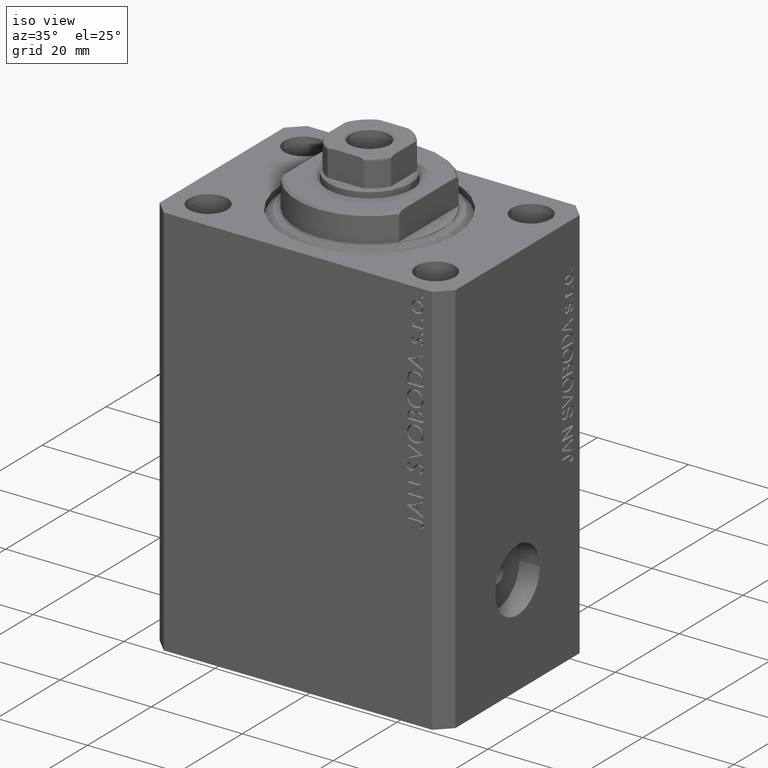
[diagram: clean part render]
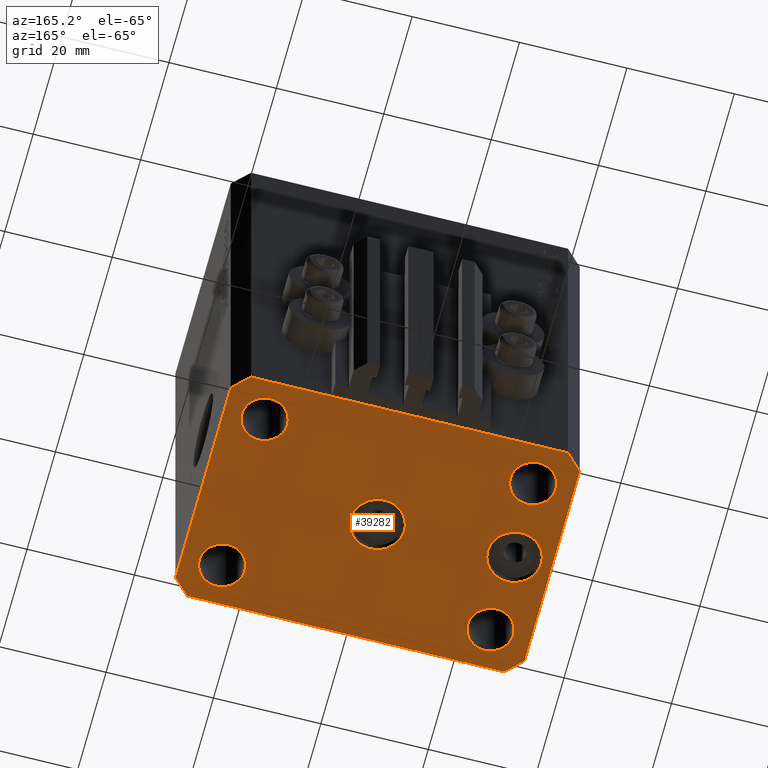
[diagram: tour spotlight — one face highlighted and labeled with its STEP entity id]
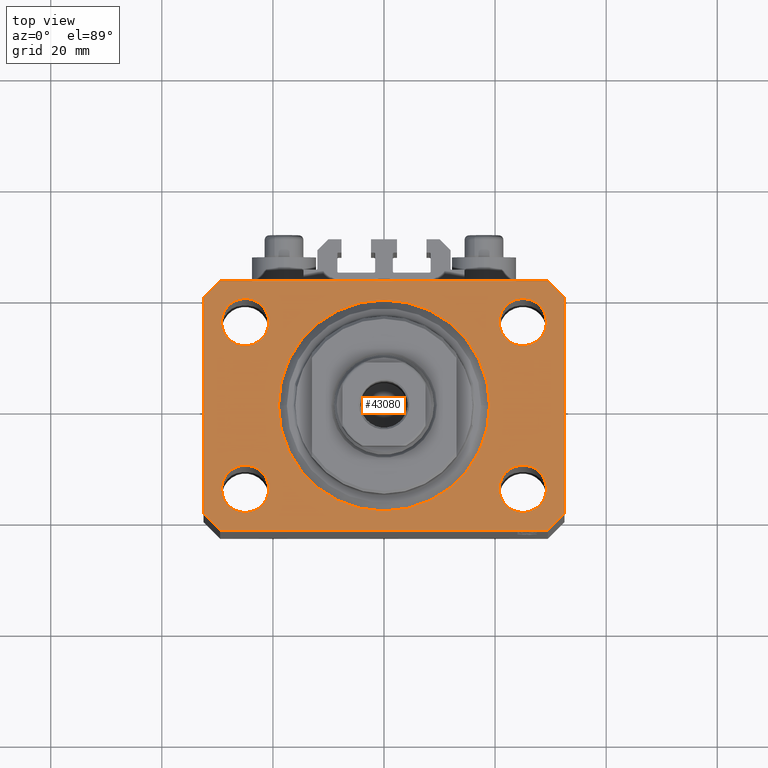
[diagram: tour spotlight — one face highlighted and labeled with its STEP entity id]
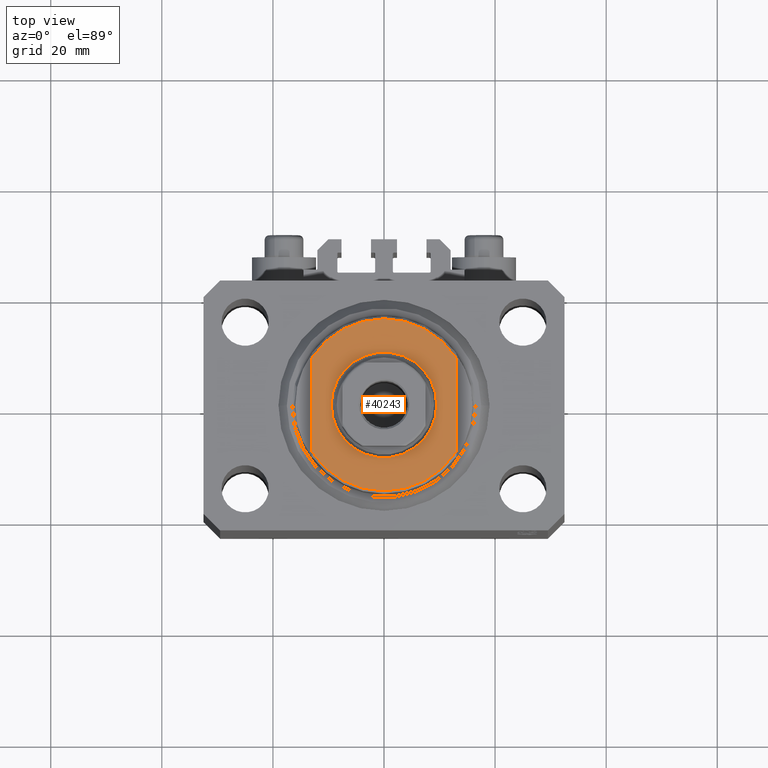
[diagram: tour spotlight — one face highlighted and labeled with its STEP entity id]
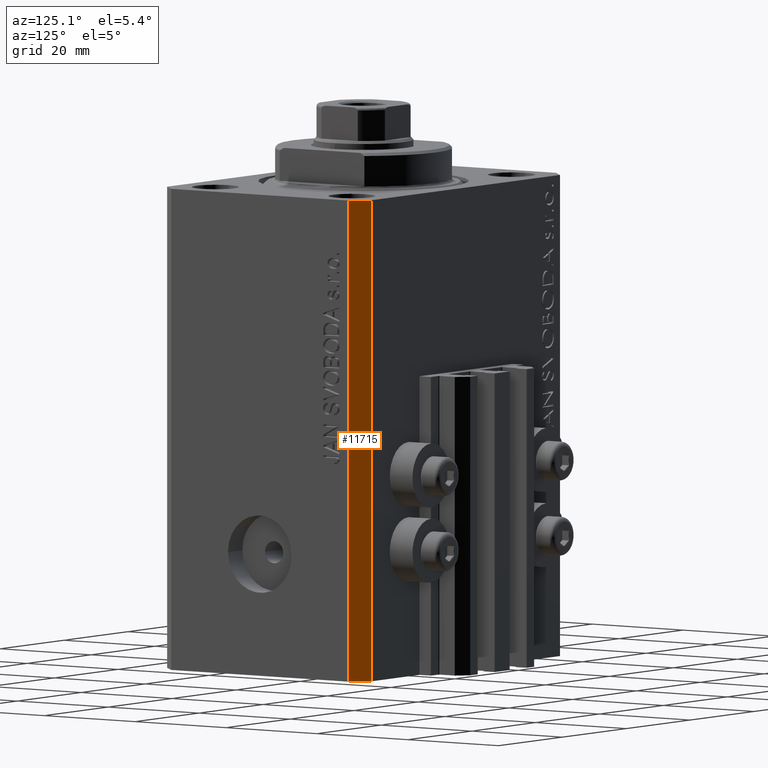
[diagram: tour spotlight — one face highlighted and labeled with its STEP entity id]
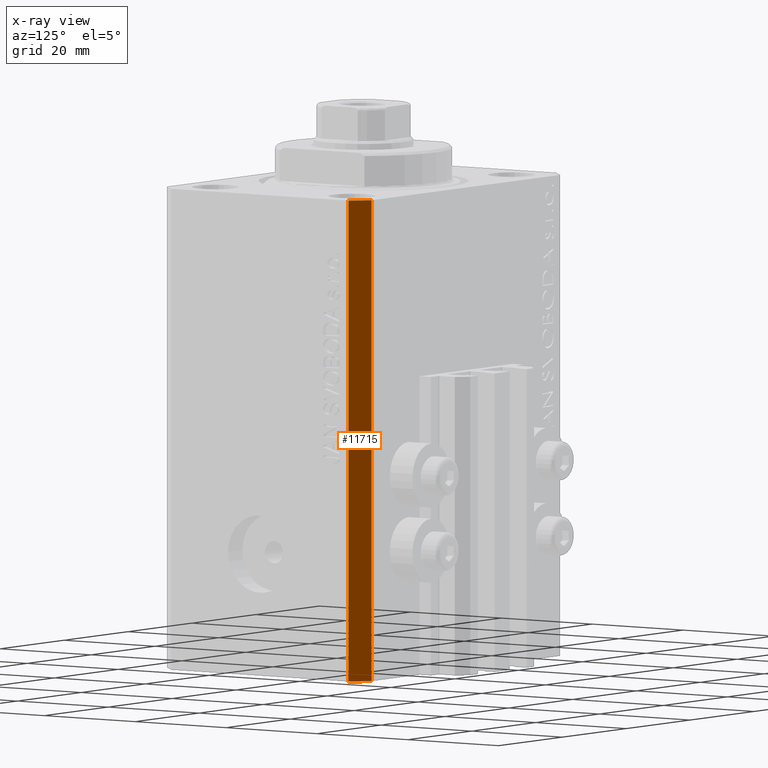
[diagram: x-ray of the same camera — body ghosted, this tour face saturated]
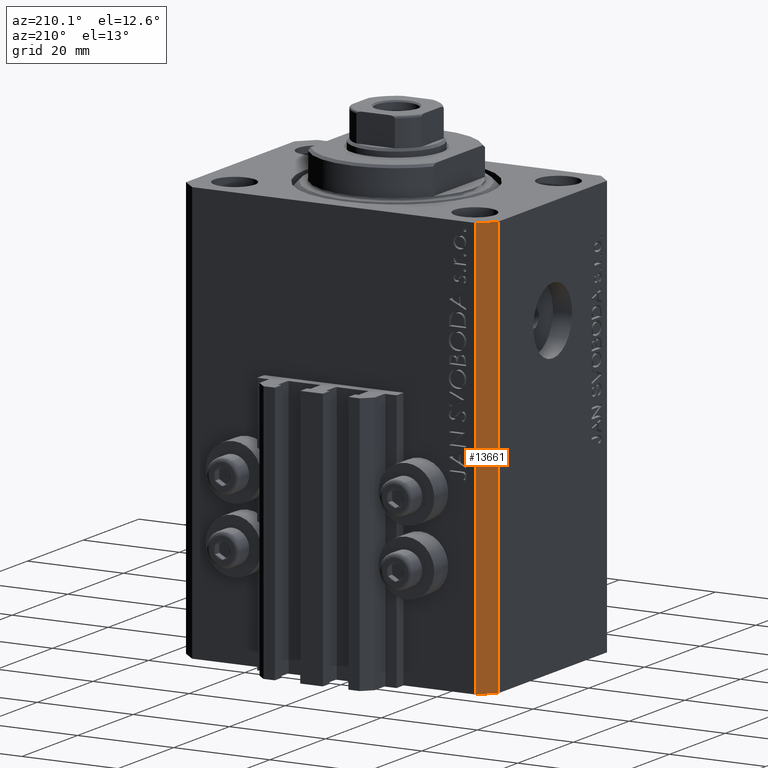
[diagram: tour spotlight — one face highlighted and labeled with its STEP entity id]
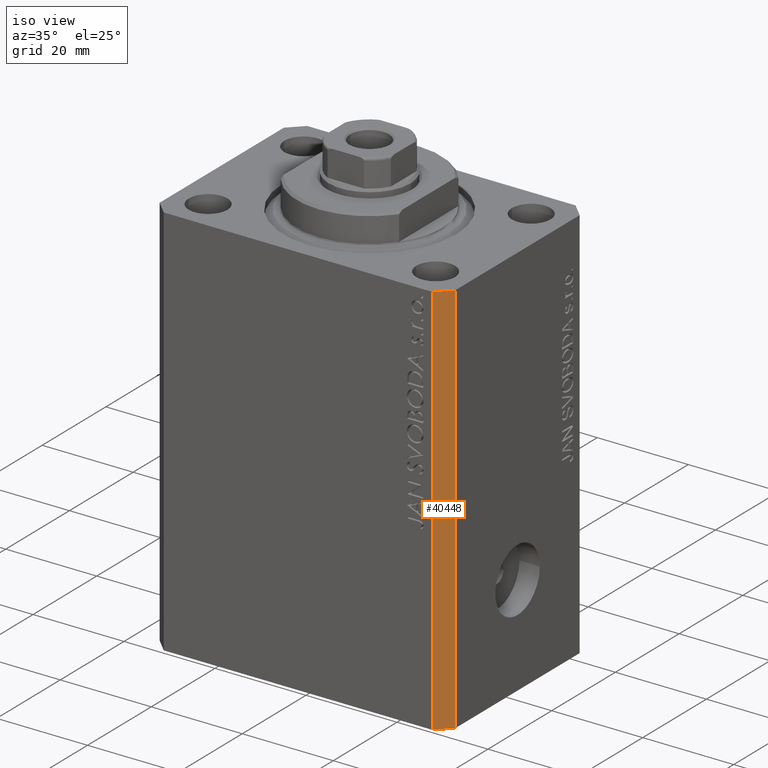
[diagram: tour spotlight — one face highlighted and labeled with its STEP entity id]
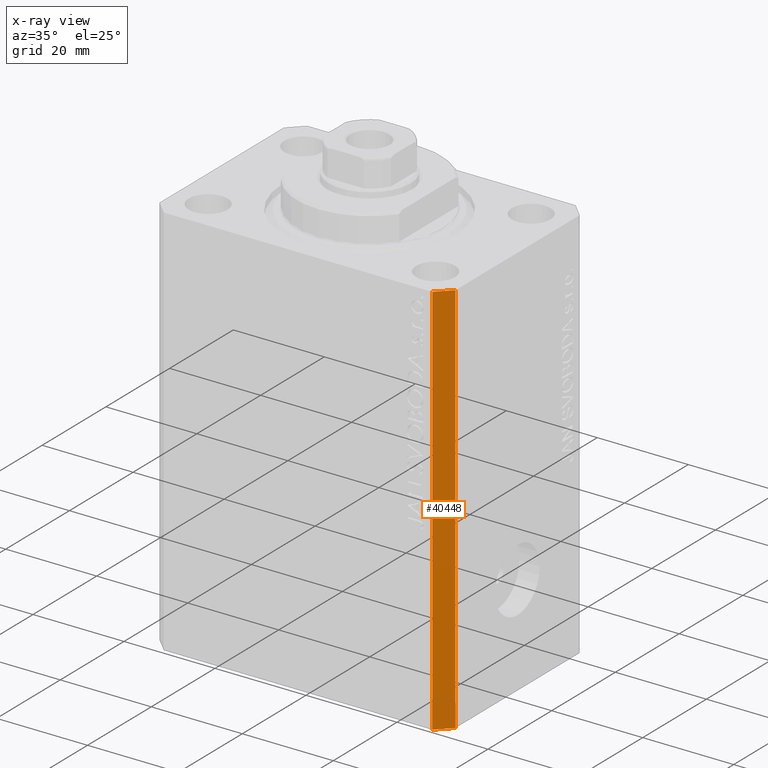
[diagram: x-ray of the same camera — body ghosted, this tour face saturated]
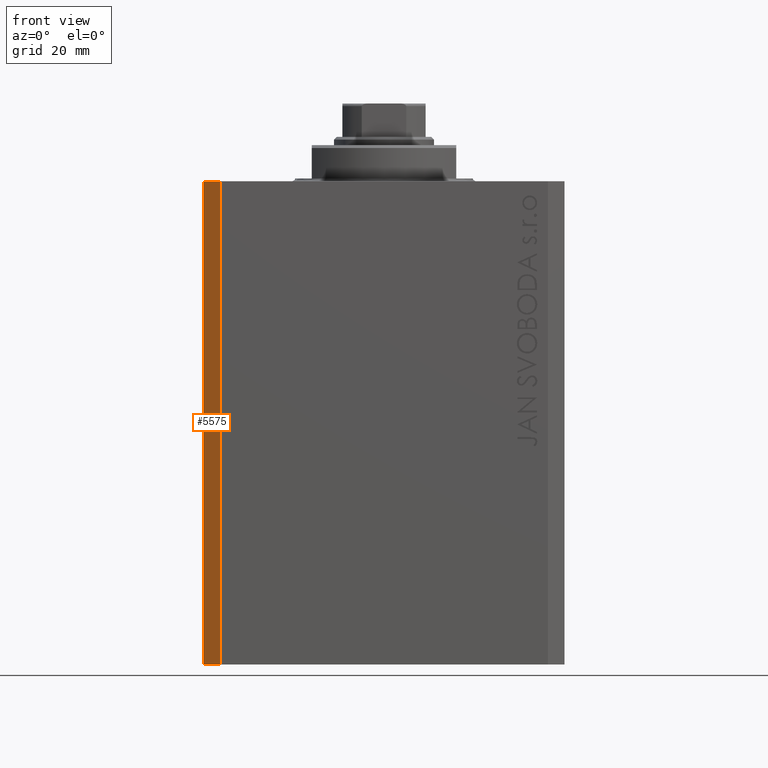
[diagram: tour spotlight — one face highlighted and labeled with its STEP entity id]
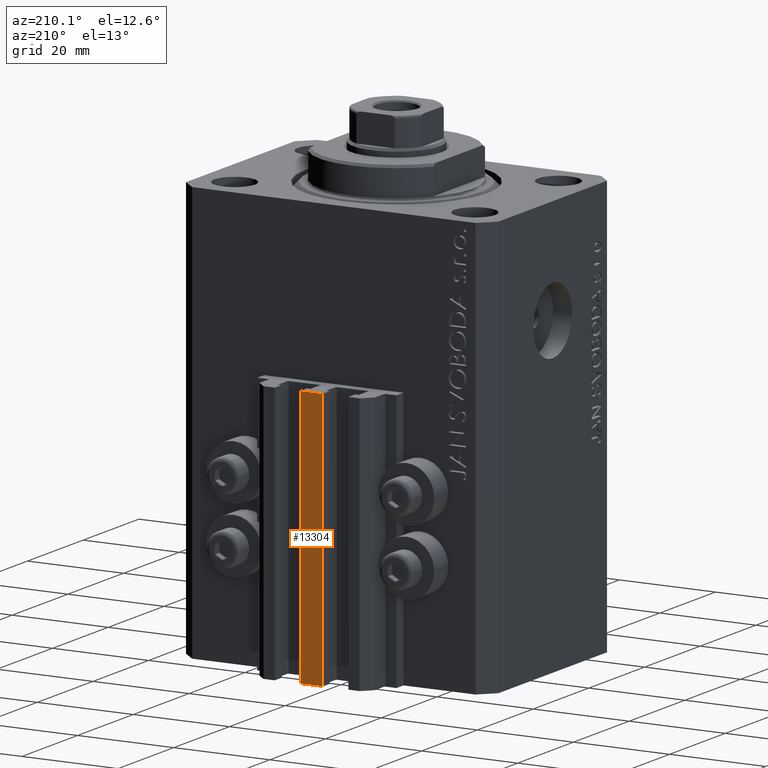
[diagram: tour spotlight — one face highlighted and labeled with its STEP entity id]
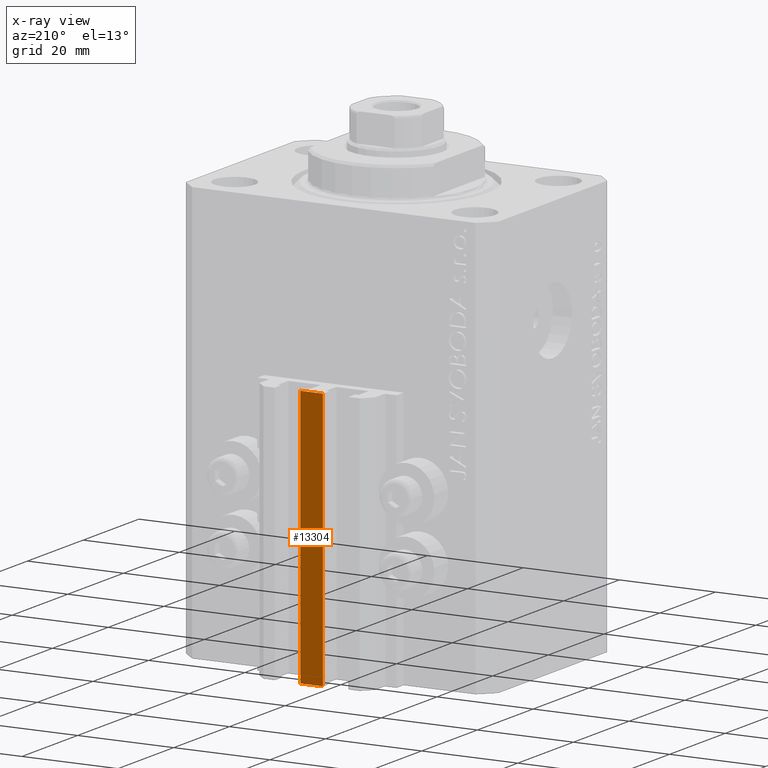
[diagram: x-ray of the same camera — body ghosted, this tour face saturated]
A machine part: a face-by-face anatomy tour. The part has 1042 B-rep faces; the first image is the clean iso view, then the 8 largest visible faces are spotlighted one at a time (largest first), each with its STEP entity span.

Face 1 — auxiliary view, entity #39282. In plain terms, the highlighted planar face has unit normal (0, 0, 1).
Definition (entity closure, byte-faithful):
#115 = LINE ( 'NONE', #44244, #20739 ) ;
#212 = AXIS2_PLACEMENT_3D ( 'NONE', #8653, #4113, #30026 ) ;
#399 = LINE ( 'NONE', #7819, #4904 ) ;
#477 = DIRECTION ( 'NONE',  ( 1.000000000000000000, 0.000000000000000000, -0.000000000000000000 ) ) ;
#521 = DIRECTION ( 'NONE',  ( -0.000000000000000000, -0.000000000000000000, -1.000000000000000000 ) ) ;
#937 = CARTESIAN_POINT ( 'NONE',  ( -20.74999999997862687, 14.99999999999999645, -87.00000000000000000 ) ) ;
#983 = DIRECTION ( 'NONE',  ( 0.7071067811865483499, 0.7071067811865466846, 0.000000000000000000 ) ) ;
#1861 = LINE ( 'NONE', #30178, #19698 ) ;
#1927 = CIRCLE ( 'NONE', #7280, 4.249999999976314058 ) ;
#2139 = VERTEX_POINT ( 'NONE', #16268 ) ;
#2210 = DIRECTION ( 'NONE',  ( -0.000000000000000000, -0.000000000000000000, -1.000000000000000000 ) ) ;
#2329 = EDGE_LOOP ( 'NONE', ( #7357, #16683 ) ) ;
#2409 = VERTEX_POINT ( 'NONE', #18868 ) ;
#2508 = VERTEX_POINT ( 'NONE', #13100 ) ;
#2662 = EDGE_CURVE ( 'NONE', #2409, #18766, #39678, .T. ) ;
#4113 = DIRECTION ( 'NONE',  ( 0.000000000000000000, 0.000000000000000000, -1.000000000000000000 ) ) ;
#4574 = CARTESIAN_POINT ( 'NONE',  ( 29.49999999999650413, -22.49999999999949196, -87.00000000000000000 ) ) ;
#4904 = VECTOR ( 'NONE', #11202, 1000.000000000000114 ) ;
#4948 = ORIENTED_EDGE ( 'NONE', *, *, #17519, .F. ) ;
#5752 = DIRECTION ( 'NONE',  ( -0.7071067811865344721, 0.7071067811865606734, 0.000000000000000000 ) ) ;
#6012 = ORIENTED_EDGE ( 'NONE', *, *, #2662, .F. ) ;
#6113 = DIRECTION ( 'NONE',  ( -1.000000000000000000, 0.000000000000000000, 0.000000000000000000 ) ) ;
#6279 = DIRECTION ( 'NONE',  ( 1.000000000000000000, 0.000000000000000000, 0.000000000000000000 ) ) ;
#6492 = DIRECTION ( 'NONE',  ( -1.000000000000000000, 0.000000000000000000, 0.000000000000000000 ) ) ;
#6747 = DIRECTION ( 'NONE',  ( -0.000000000000000000, -0.000000000000000000, -1.000000000000000000 ) ) ;
#7280 = AXIS2_PLACEMENT_3D ( 'NONE', #46734, #46969, #7368 ) ;
#7357 = ORIENTED_EDGE ( 'NONE', *, *, #10521, .F. ) ;
#7368 = DIRECTION ( 'NONE',  ( 1.000000000000000000, 0.000000000000000000, 0.000000000000000000 ) ) ;
#7600 = VECTOR ( 'NONE', #5752, 1000.000000000000000 ) ;
#7702 = EDGE_LOOP ( 'NONE', ( #34457, #42528 ) ) ;
#7819 = CARTESIAN_POINT ( 'NONE',  ( -32.49999999999650413, -19.49999999999949907, -87.00000000000000000 ) ) ;
#7864 = EDGE_CURVE ( 'NONE', #20092, #42844, #1927, .T. ) ;
#8006 = VERTEX_POINT ( 'NONE', #26803 ) ;
#8611 = CARTESIAN_POINT ( 'NONE',  ( 0.000000000000000000, 0.000000000000000000, -87.00000000000000000 ) ) ;
#8653 = CARTESIAN_POINT ( 'NONE',  ( -25.50000000000000000, 0.000000000000000000, -87.00000000000000000 ) ) ;
#8844 = CARTESIAN_POINT ( 'NONE',  ( -24.99999999999999289, -15.00000000000000355, -87.00000000000000000 ) ) ;
#8918 = DIRECTION ( 'NONE',  ( -0.7071067811865474617, -0.7071067811865474617, 0.000000000000000000 ) ) ;
#9793 = ORIENTED_EDGE ( 'NONE', *, *, #38619, .F. ) ;
#9897 = CARTESIAN_POINT ( 'NONE',  ( 20.75000000002367884, -15.00000000000000355, -87.00000000000000000 ) ) ;
#9981 = EDGE_LOOP ( 'NONE', ( #42100, #41943 ) ) ;
#10369 = CARTESIAN_POINT ( 'NONE',  ( 29.49999999999650413, -22.49999999999949196, -87.00000000000000000 ) ) ;
#10419 = DIRECTION ( 'NONE',  ( 0.000000000000000000, 0.000000000000000000, -1.000000000000000000 ) ) ;
#10521 = EDGE_CURVE ( 'NONE', #14673, #21782, #37959, .T. ) ;
#11202 = DIRECTION ( 'NONE',  ( 0.7071067811865474617, -0.7071067811865474617, 0.000000000000000000 ) ) ;
#11326 = DIRECTION ( 'NONE',  ( 1.000000000000000000, 0.000000000000000000, 0.000000000000000000 ) ) ;
#11360 = CARTESIAN_POINT ( 'NONE',  ( 32.49999999999651124, -19.49999999999949196, -87.00000000000000000 ) ) ;
#12238 = PLANE ( 'NONE',  #23540 ) ;
#13100 = CARTESIAN_POINT ( 'NONE',  ( 32.49999999999651124, -19.49999999999949196, -87.00000000000000000 ) ) ;
#13517 = CARTESIAN_POINT ( 'NONE',  ( -29.49999999999650413, -22.49999999999949907, -87.00000000000000000 ) ) ;
#13853 = AXIS2_PLACEMENT_3D ( 'NONE', #36966, #521, #11326 ) ;
#13932 = EDGE_LOOP ( 'NONE', ( #23714, #39265, #9793, #4948, #46958, #45571, #46895, #20396 ) ) ;
#14123 = CIRCLE ( 'NONE', #46269, 4.999999999996659561 ) ;
#14287 = DIRECTION ( 'NONE',  ( -0.000000000000000000, -0.000000000000000000, -1.000000000000000000 ) ) ;
#14358 = EDGE_LOOP ( 'NONE', ( #6012, #15526 ) ) ;
#14377 = CARTESIAN_POINT ( 'NONE',  ( 29.24999999995729283, 14.99999999999999289, -87.00000000000000000 ) ) ;
#14420 = FACE_BOUND ( 'NONE', #22101, .T. ) ;
#14618 = CIRCLE ( 'NONE', #13853, 4.249999999957291053 ) ;
#14673 = VERTEX_POINT ( 'NONE', #20162 ) ;
#14762 = DIRECTION ( 'NONE',  ( 1.000000000000000000, 0.000000000000000000, 0.000000000000000000 ) ) ;
#14763 = EDGE_CURVE ( 'NONE', #36893, #38897, #46533, .T. ) ;
#14764 = DIRECTION ( 'NONE',  ( 0.000000000000000000, -1.000000000000000000, 0.000000000000000000 ) ) ;
#14844 = CIRCLE ( 'NONE', #21722, 4.250000000021375790 ) ;
#15526 = ORIENTED_EDGE ( 'NONE', *, *, #15631, .F. ) ;
#15606 = CIRCLE ( 'NONE', #30133, 4.249999999957291053 ) ;
#15631 = EDGE_CURVE ( 'NONE', #18766, #2409, #36743, .T. ) ;
#16268 = CARTESIAN_POINT ( 'NONE',  ( -29.49999999999650413, 22.49999999999949907, -87.00000000000000000 ) ) ;
#16607 = DIRECTION ( 'NONE',  ( 1.000000000000000000, 0.000000000000000000, 0.000000000000000000 ) ) ;
#16683 = ORIENTED_EDGE ( 'NONE', *, *, #39320, .F. ) ;
#17107 = LINE ( 'NONE', #13517, #41570 ) ;
#17150 = DIRECTION ( 'NONE',  ( 1.000000000000000000, 0.000000000000000000, 0.000000000000000000 ) ) ;
#17308 = CARTESIAN_POINT ( 'NONE',  ( 24.99999999999999289, -15.00000000000000355, -87.00000000000000000 ) ) ;
#17519 = EDGE_CURVE ( 'NONE', #24208, #2508, #23051, .T. ) ;
#17910 = EDGE_CURVE ( 'NONE', #41225, #33982, #14618, .T. ) ;
#18011 = FACE_BOUND ( 'NONE', #14358, .T. ) ;
#18096 = CARTESIAN_POINT ( 'NONE',  ( 20.75000000004271072, 14.99999999999999289, -87.00000000000000000 ) ) ;
#18259 = CARTESIAN_POINT ( 'NONE',  ( 0.000000000000000000, 0.000000000000000000, -87.00000000000000000 ) ) ;
#18484 = EDGE_CURVE ( 'NONE', #32794, #38269, #115, .T. ) ;
#18766 = VERTEX_POINT ( 'NONE', #43008 ) ;
#18868 = CARTESIAN_POINT ( 'NONE',  ( -5.000000000000000000, 0.000000000000000000, -87.00000000000000000 ) ) ;
#19194 = DIRECTION ( 'NONE',  ( 0.000000000000000000, 0.000000000000000000, 1.000000000000000000 ) ) ;
#19698 = VECTOR ( 'NONE', #26825, 1000.000000000000000 ) ;
#19733 = LINE ( 'NONE', #45161, #21952 ) ;
#19909 = ORIENTED_EDGE ( 'NONE', *, *, #7864, .F. ) ;
#20092 = VERTEX_POINT ( 'NONE', #44624 ) ;
#20162 = CARTESIAN_POINT ( 'NONE',  ( -20.74999999995962341, -15.00000000000000355, -87.00000000000000000 ) ) ;
#20396 = ORIENTED_EDGE ( 'NONE', *, *, #37584, .F. ) ;
#20739 = VECTOR ( 'NONE', #14764, 1000.000000000000000 ) ;
#20826 = ORIENTED_EDGE ( 'NONE', *, *, #30886, .F. ) ;
#21215 = CARTESIAN_POINT ( 'NONE',  ( 25.00000000000000000, 14.99999999999999289, -87.00000000000000000 ) ) ;
#21456 = VECTOR ( 'NONE', #983, 1000.000000000000000 ) ;
#21698 = DIRECTION ( 'NONE',  ( -1.000000000000000000, 0.000000000000000000, 0.000000000000000000 ) ) ;
#21722 = AXIS2_PLACEMENT_3D ( 'NONE', #28598, #6747, #6279 ) ;
#21782 = VERTEX_POINT ( 'NONE', #36793 ) ;
#21927 = CARTESIAN_POINT ( 'NONE',  ( -25.50000000000000000, 0.000000000000000000, -87.00000000000000000 ) ) ;
#21952 = VECTOR ( 'NONE', #8918, 1000.000000000000114 ) ;
#22101 = EDGE_LOOP ( 'NONE', ( #19909, #39109 ) ) ;
#23051 = LINE ( 'NONE', #4574, #21456 ) ;
#23540 = AXIS2_PLACEMENT_3D ( 'NONE', #8611, #19194, #477 ) ;
#23714 = ORIENTED_EDGE ( 'NONE', *, *, #38933, .F. ) ;
#23996 = VERTEX_POINT ( 'NONE', #40385 ) ;
#24134 = EDGE_CURVE ( 'NONE', #8006, #24208, #17107, .T. ) ;
#24208 = VERTEX_POINT ( 'NONE', #10369 ) ;
#24247 = CARTESIAN_POINT ( 'NONE',  ( 32.49999999999702993, 19.49999999999945999, -87.00000000000000000 ) ) ;
#24331 = CIRCLE ( 'NONE', #44210, 4.249999999976314058 ) ;
#24348 = EDGE_CURVE ( 'NONE', #35754, #23996, #40034, .T. ) ;
#24373 = CARTESIAN_POINT ( 'NONE',  ( 0.000000000000000000, 0.000000000000000000, -87.00000000000000000 ) ) ;
#24511 = EDGE_LOOP ( 'NONE', ( #20826, #29509 ) ) ;
#24831 = DIRECTION ( 'NONE',  ( -0.000000000000000000, -0.000000000000000000, -1.000000000000000000 ) ) ;
#25656 = CARTESIAN_POINT ( 'NONE',  ( 29.49999999999707967, 22.49999999999952038, -87.00000000000000000 ) ) ;
#26803 = CARTESIAN_POINT ( 'NONE',  ( -29.49999999999650413, -22.49999999999949907, -87.00000000000000000 ) ) ;
#26825 = DIRECTION ( 'NONE',  ( -1.000000000000000000, -3.528251137580330676E-16, 0.000000000000000000 ) ) ;
#27117 = CARTESIAN_POINT ( 'NONE',  ( -20.50000000000333955, 6.123233995732674066E-16, -87.00000000000000000 ) ) ;
#28062 = VERTEX_POINT ( 'NONE', #937 ) ;
#28305 = EDGE_CURVE ( 'NONE', #38269, #8006, #399, .T. ) ;
#28598 = CARTESIAN_POINT ( 'NONE',  ( -25.00000000000000000, 14.99999999999999645, -87.00000000000000000 ) ) ;
#29047 = FACE_BOUND ( 'NONE', #9981, .T. ) ;
#29509 = ORIENTED_EDGE ( 'NONE', *, *, #24348, .F. ) ;
#29960 = EDGE_CURVE ( 'NONE', #33982, #41225, #15606, .T. ) ;
#30026 = DIRECTION ( 'NONE',  ( -1.000000000000000000, 0.000000000000000000, 0.000000000000000000 ) ) ;
#30133 = AXIS2_PLACEMENT_3D ( 'NONE', #21215, #43274, #17150 ) ;
#30178 = CARTESIAN_POINT ( 'NONE',  ( 29.49999999999707967, 22.49999999999952038, -87.00000000000000000 ) ) ;
#30234 = EDGE_CURVE ( 'NONE', #28062, #41260, #14844, .T. ) ;
#30886 = EDGE_CURVE ( 'NONE', #23996, #35754, #14123, .T. ) ;
#32472 = DIRECTION ( 'NONE',  ( 1.334402673828349134E-14, 1.000000000000000000, 0.000000000000000000 ) ) ;
#32593 = CARTESIAN_POINT ( 'NONE',  ( -29.25000000002137668, 14.99999999999999645, -87.00000000000000000 ) ) ;
#32635 = FACE_BOUND ( 'NONE', #24511, .T. ) ;
#32794 = VERTEX_POINT ( 'NONE', #42404 ) ;
#33236 = CARTESIAN_POINT ( 'NONE',  ( -32.49999999999650413, -19.49999999999949907, -87.00000000000000000 ) ) ;
#33311 = AXIS2_PLACEMENT_3D ( 'NONE', #39908, #24831, #39429 ) ;
#33678 = CARTESIAN_POINT ( 'NONE',  ( -24.99999999999999289, -15.00000000000000355, -87.00000000000000000 ) ) ;
#33963 = EDGE_CURVE ( 'NONE', #41260, #28062, #40978, .T. ) ;
#33982 = VERTEX_POINT ( 'NONE', #18096 ) ;
#34283 = FACE_OUTER_BOUND ( 'NONE', #13932, .T. ) ;
#34457 = ORIENTED_EDGE ( 'NONE', *, *, #30234, .F. ) ;
#34996 = VECTOR ( 'NONE', #32472, 1000.000000000000000 ) ;
#35754 = VERTEX_POINT ( 'NONE', #27117 ) ;
#35965 = AXIS2_PLACEMENT_3D ( 'NONE', #18259, #39353, #6492 ) ;
#36743 = CIRCLE ( 'NONE', #35965, 5.000000000000000000 ) ;
#36793 = CARTESIAN_POINT ( 'NONE',  ( -29.25000000004036593, -15.00000000000000355, -87.00000000000000000 ) ) ;
#36893 = VERTEX_POINT ( 'NONE', #46511 ) ;
#36966 = CARTESIAN_POINT ( 'NONE',  ( 25.00000000000000000, 14.99999999999999289, -87.00000000000000000 ) ) ;
#37402 = DIRECTION ( 'NONE',  ( 1.000000000000000000, 0.000000000000000000, 0.000000000000000000 ) ) ;
#37584 = EDGE_CURVE ( 'NONE', #2139, #32794, #19733, .T. ) ;
#37959 = CIRCLE ( 'NONE', #41054, 4.250000000040370374 ) ;
#38269 = VERTEX_POINT ( 'NONE', #33236 ) ;
#38619 = EDGE_CURVE ( 'NONE', #2508, #36893, #39666, .T. ) ;
#38897 = VERTEX_POINT ( 'NONE', #25656 ) ;
#38933 = EDGE_CURVE ( 'NONE', #38897, #2139, #1861, .T. ) ;
#38972 = DIRECTION ( 'NONE',  ( 0.000000000000000000, 0.000000000000000000, -1.000000000000000000 ) ) ;
#39109 = ORIENTED_EDGE ( 'NONE', *, *, #39976, .F. ) ;
#39265 = ORIENTED_EDGE ( 'NONE', *, *, #14763, .F. ) ;
#39282 = ADVANCED_FACE ( 'NONE', ( #18011, #32635, #47271, #14420, #29047, #43668, #34283 ), #12238, .F. ) ;
#39320 = EDGE_CURVE ( 'NONE', #21782, #14673, #41903, .T. ) ;
#39353 = DIRECTION ( 'NONE',  ( 0.000000000000000000, 0.000000000000000000, -1.000000000000000000 ) ) ;
#39429 = DIRECTION ( 'NONE',  ( 1.000000000000000000, 0.000000000000000000, 0.000000000000000000 ) ) ;
#39666 = LINE ( 'NONE', #11360, #34996 ) ;
#39678 = CIRCLE ( 'NONE', #46611, 5.000000000000000000 ) ;
#39908 = CARTESIAN_POINT ( 'NONE',  ( -25.00000000000000000, 14.99999999999999645, -87.00000000000000000 ) ) ;
#39976 = EDGE_CURVE ( 'NONE', #42844, #20092, #24331, .T. ) ;
#40034 = CIRCLE ( 'NONE', #212, 4.999999999996659561 ) ;
#40385 = CARTESIAN_POINT ( 'NONE',  ( -30.49999999999665690, 0.000000000000000000, -87.00000000000000000 ) ) ;
#40978 = CIRCLE ( 'NONE', #33311, 4.250000000021375790 ) ;
#41054 = AXIS2_PLACEMENT_3D ( 'NONE', #33678, #14287, #14762 ) ;
#41225 = VERTEX_POINT ( 'NONE', #14377 ) ;
#41260 = VERTEX_POINT ( 'NONE', #32593 ) ;
#41570 = VECTOR ( 'NONE', #42757, 1000.000000000000000 ) ;
#41903 = CIRCLE ( 'NONE', #42699, 4.250000000040370374 ) ;
#41943 = ORIENTED_EDGE ( 'NONE', *, *, #29960, .F. ) ;
#42100 = ORIENTED_EDGE ( 'NONE', *, *, #17910, .F. ) ;
#42404 = CARTESIAN_POINT ( 'NONE',  ( -32.49999999999650413, 19.49999999999949907, -87.00000000000000000 ) ) ;
#42528 = ORIENTED_EDGE ( 'NONE', *, *, #33963, .F. ) ;
#42699 = AXIS2_PLACEMENT_3D ( 'NONE', #8844, #44379, #37402 ) ;
#42757 = DIRECTION ( 'NONE',  ( 1.000000000000000000, 1.176083712526788232E-16, 0.000000000000000000 ) ) ;
#42844 = VERTEX_POINT ( 'NONE', #9897 ) ;
#43008 = CARTESIAN_POINT ( 'NONE',  ( 5.000000000000000000, 6.123233995736765296E-16, -87.00000000000000000 ) ) ;
#43274 = DIRECTION ( 'NONE',  ( -0.000000000000000000, -0.000000000000000000, -1.000000000000000000 ) ) ;
#43668 = FACE_BOUND ( 'NONE', #7702, .T. ) ;
#44210 = AXIS2_PLACEMENT_3D ( 'NONE', #17308, #2210, #16607 ) ;
#44244 = CARTESIAN_POINT ( 'NONE',  ( -32.49999999999650413, 19.49999999999949907, -87.00000000000000000 ) ) ;
#44379 = DIRECTION ( 'NONE',  ( -0.000000000000000000, -0.000000000000000000, -1.000000000000000000 ) ) ;
#44624 = CARTESIAN_POINT ( 'NONE',  ( 29.24999999997631051, -15.00000000000000355, -87.00000000000000000 ) ) ;
#45161 = CARTESIAN_POINT ( 'NONE',  ( -29.49999999999650413, 22.49999999999949907, -87.00000000000000000 ) ) ;
#45571 = ORIENTED_EDGE ( 'NONE', *, *, #28305, .F. ) ;
#46269 = AXIS2_PLACEMENT_3D ( 'NONE', #21927, #10419, #21698 ) ;
#46511 = CARTESIAN_POINT ( 'NONE',  ( 32.49999999999702993, 19.49999999999945999, -87.00000000000000000 ) ) ;
#46533 = LINE ( 'NONE', #24247, #7600 ) ;
#46611 = AXIS2_PLACEMENT_3D ( 'NONE', #24373, #38972, #6113 ) ;
#46734 = CARTESIAN_POINT ( 'NONE',  ( 24.99999999999999289, -15.00000000000000355, -87.00000000000000000 ) ) ;
#46895 = ORIENTED_EDGE ( 'NONE', *, *, #18484, .F. ) ;
#46958 = ORIENTED_EDGE ( 'NONE', *, *, #24134, .F. ) ;
#46969 = DIRECTION ( 'NONE',  ( -0.000000000000000000, -0.000000000000000000, -1.000000000000000000 ) ) ;
#47271 = FACE_BOUND ( 'NONE', #2329, .T. ) ;

Face 2 — top view, entity #43080. In plain terms, the highlighted planar face has unit normal (0, 0, 1).
Definition (entity closure, byte-faithful):
#415 = CIRCLE ( 'NONE', #27233, 4.250000000040370374 ) ;
#1562 = DIRECTION ( 'NONE',  ( 1.334402673828349134E-14, 1.000000000000000000, 0.000000000000000000 ) ) ;
#1712 = VERTEX_POINT ( 'NONE', #27666 ) ;
#1753 = AXIS2_PLACEMENT_3D ( 'NONE', #30493, #3877, #29549 ) ;
#1908 = ORIENTED_EDGE ( 'NONE', *, *, #12522, .T. ) ;
#2092 = ORIENTED_EDGE ( 'NONE', *, *, #29852, .T. ) ;
#2211 = CARTESIAN_POINT ( 'NONE',  ( 0.000000000000000000, 0.000000000000000000, 0.000000000000000000 ) ) ;
#2457 = EDGE_CURVE ( 'NONE', #2495, #32925, #45006, .T. ) ;
#2495 = VERTEX_POINT ( 'NONE', #23654 ) ;
#2656 = ORIENTED_EDGE ( 'NONE', *, *, #27652, .T. ) ;
#2802 = VERTEX_POINT ( 'NONE', #3586 ) ;
#3112 = FACE_BOUND ( 'NONE', #21899, .T. ) ;
#3213 = EDGE_CURVE ( 'NONE', #1712, #13320, #28262, .T. ) ;
#3478 = EDGE_CURVE ( 'NONE', #32748, #5506, #3706, .T. ) ;
#3586 = CARTESIAN_POINT ( 'NONE',  ( -32.49999999999650413, -19.49999999999949907, 0.000000000000000000 ) ) ;
#3687 = CARTESIAN_POINT ( 'NONE',  ( -29.49999999999650413, -22.49999999999949907, 0.000000000000000000 ) ) ;
#3706 = LINE ( 'NONE', #44480, #42804 ) ;
#3877 = DIRECTION ( 'NONE',  ( 0.000000000000000000, 0.000000000000000000, 1.000000000000000000 ) ) ;
#5068 = VERTEX_POINT ( 'NONE', #36709 ) ;
#5155 = CARTESIAN_POINT ( 'NONE',  ( 32.49999999999651124, -19.49999999999949196, 0.000000000000000000 ) ) ;
#5506 = VERTEX_POINT ( 'NONE', #20090 ) ;
#5577 = DIRECTION ( 'NONE',  ( 0.000000000000000000, 0.000000000000000000, 1.000000000000000000 ) ) ;
#5867 = LINE ( 'NONE', #5155, #44693 ) ;
#5892 = DIRECTION ( 'NONE',  ( 1.000000000000000000, 0.000000000000000000, 0.000000000000000000 ) ) ;
#6176 = LINE ( 'NONE', #21768, #34695 ) ;
#6398 = CIRCLE ( 'NONE', #7156, 4.249999999976314058 ) ;
#6707 = PLANE ( 'NONE',  #46605 ) ;
#6817 = CARTESIAN_POINT ( 'NONE',  ( 29.49999999999650413, -22.49999999999949196, 0.000000000000000000 ) ) ;
#7046 = CARTESIAN_POINT ( 'NONE',  ( 24.99999999999999289, -15.00000000000000355, 0.000000000000000000 ) ) ;
#7116 = CARTESIAN_POINT ( 'NONE',  ( 29.49999999999650413, -22.49999999999949196, 0.000000000000000000 ) ) ;
#7150 = CARTESIAN_POINT ( 'NONE',  ( 29.24999999995729283, 14.99999999999999289, 0.000000000000000000 ) ) ;
#7156 = AXIS2_PLACEMENT_3D ( 'NONE', #7046, #41333, #15685 ) ;
#7583 = CARTESIAN_POINT ( 'NONE',  ( -32.49999999999650413, 19.49999999999949907, 0.000000000000000000 ) ) ;
#7731 = CARTESIAN_POINT ( 'NONE',  ( -29.25000000004036593, -15.00000000000000355, 0.000000000000000000 ) ) ;
#7742 = CARTESIAN_POINT ( 'NONE',  ( -20.74999999997862687, 14.99999999999999645, 0.000000000000000000 ) ) ;
#8827 = EDGE_CURVE ( 'NONE', #12956, #39881, #415, .T. ) ;
#8874 = LINE ( 'NONE', #20399, #21758 ) ;
#10079 = FACE_BOUND ( 'NONE', #20161, .T. ) ;
#10089 = EDGE_LOOP ( 'NONE', ( #12179, #20663 ) ) ;
#10352 = EDGE_CURVE ( 'NONE', #32380, #45792, #18844, .T. ) ;
#10719 = ORIENTED_EDGE ( 'NONE', *, *, #11780, .F. ) ;
#11118 = VERTEX_POINT ( 'NONE', #25449 ) ;
#11273 = VECTOR ( 'NONE', #27169, 1000.000000000000000 ) ;
#11780 = EDGE_CURVE ( 'NONE', #38070, #47210, #13550, .T. ) ;
#12084 = ORIENTED_EDGE ( 'NONE', *, *, #28244, .T. ) ;
#12179 = ORIENTED_EDGE ( 'NONE', *, *, #8827, .F. ) ;
#12263 = DIRECTION ( 'NONE',  ( -1.000000000000000000, -3.528251137580330676E-16, 0.000000000000000000 ) ) ;
#12522 = EDGE_CURVE ( 'NONE', #32925, #2802, #45394, .T. ) ;
#12723 = CARTESIAN_POINT ( 'NONE',  ( -20.74999999995962341, -15.00000000000000355, 0.000000000000000000 ) ) ;
#12956 = VERTEX_POINT ( 'NONE', #12723 ) ;
#13320 = VERTEX_POINT ( 'NONE', #7742 ) ;
#13485 = CARTESIAN_POINT ( 'NONE',  ( 25.00000000000000000, 14.99999999999999289, 0.000000000000000000 ) ) ;
#13550 = CIRCLE ( 'NONE', #28091, 4.249999999957291053 ) ;
#13597 = ORIENTED_EDGE ( 'NONE', *, *, #47414, .F. ) ;
#14194 = DIRECTION ( 'NONE',  ( 1.000000000000000000, 0.000000000000000000, 0.000000000000000000 ) ) ;
#14578 = DIRECTION ( 'NONE',  ( 0.000000000000000000, 0.000000000000000000, 1.000000000000000000 ) ) ;
#15588 = ORIENTED_EDGE ( 'NONE', *, *, #26404, .F. ) ;
#15685 = DIRECTION ( 'NONE',  ( 1.000000000000000000, 0.000000000000000000, 0.000000000000000000 ) ) ;
#16627 = CARTESIAN_POINT ( 'NONE',  ( 25.00000000000000000, 14.99999999999999289, 0.000000000000000000 ) ) ;
#17293 = ORIENTED_EDGE ( 'NONE', *, *, #18426, .F. ) ;
#18426 = EDGE_CURVE ( 'NONE', #13320, #1712, #40643, .T. ) ;
#18844 = CIRCLE ( 'NONE', #36475, 4.249999999976314058 ) ;
#19338 = CARTESIAN_POINT ( 'NONE',  ( -29.49999999999650413, 22.49999999999949907, 0.000000000000000000 ) ) ;
#19382 = ORIENTED_EDGE ( 'NONE', *, *, #26942, .T. ) ;
#20090 = CARTESIAN_POINT ( 'NONE',  ( 29.49999999999707967, 22.49999999999952038, 0.000000000000000000 ) ) ;
#20161 = EDGE_LOOP ( 'NONE', ( #33040, #38443 ) ) ;
#20181 = ORIENTED_EDGE ( 'NONE', *, *, #3213, .F. ) ;
#20399 = CARTESIAN_POINT ( 'NONE',  ( -29.49999999999650413, -22.49999999999949907, 0.000000000000000000 ) ) ;
#20663 = ORIENTED_EDGE ( 'NONE', *, *, #24366, .F. ) ;
#20913 = DIRECTION ( 'NONE',  ( 0.000000000000000000, 0.000000000000000000, 1.000000000000000000 ) ) ;
#21141 = DIRECTION ( 'NONE',  ( 0.000000000000000000, 0.000000000000000000, 1.000000000000000000 ) ) ;
#21467 = DIRECTION ( 'NONE',  ( 0.7071067811865483499, 0.7071067811865466846, 0.000000000000000000 ) ) ;
#21758 = VECTOR ( 'NONE', #23535, 1000.000000000000000 ) ;
#21768 = CARTESIAN_POINT ( 'NONE',  ( -32.49999999999650413, -19.49999999999949907, 0.000000000000000000 ) ) ;
#21863 = AXIS2_PLACEMENT_3D ( 'NONE', #46338, #36008, #28351 ) ;
#21899 = EDGE_LOOP ( 'NONE', ( #17293, #20181 ) ) ;
#22894 = DIRECTION ( 'NONE',  ( -0.7071067811865344721, 0.7071067811865606734, 0.000000000000000000 ) ) ;
#22991 = VERTEX_POINT ( 'NONE', #35995 ) ;
#23117 = CIRCLE ( 'NONE', #29248, 4.249999999957291053 ) ;
#23535 = DIRECTION ( 'NONE',  ( 1.000000000000000000, 1.176083712526788232E-16, 0.000000000000000000 ) ) ;
#23654 = CARTESIAN_POINT ( 'NONE',  ( -29.49999999999650413, 22.49999999999949907, 0.000000000000000000 ) ) ;
#23672 = AXIS2_PLACEMENT_3D ( 'NONE', #36385, #14578, #29204 ) ;
#24149 = CARTESIAN_POINT ( 'NONE',  ( -25.00000000000000000, 14.99999999999999645, 0.000000000000000000 ) ) ;
#24335 = EDGE_LOOP ( 'NONE', ( #31144, #42900, #1908, #12084, #19382, #2656, #2092, #32096 ) ) ;
#24366 = EDGE_CURVE ( 'NONE', #39881, #12956, #42335, .T. ) ;
#24734 = FACE_BOUND ( 'NONE', #43535, .T. ) ;
#24967 = FACE_OUTER_BOUND ( 'NONE', #24335, .T. ) ;
#25449 = CARTESIAN_POINT ( 'NONE',  ( 32.49999999999651124, -19.49999999999949196, 0.000000000000000000 ) ) ;
#25709 = AXIS2_PLACEMENT_3D ( 'NONE', #2211, #20913, #14194 ) ;
#26078 = DIRECTION ( 'NONE',  ( 1.000000000000000000, 0.000000000000000000, 0.000000000000000000 ) ) ;
#26333 = VERTEX_POINT ( 'NONE', #3687 ) ;
#26404 = EDGE_CURVE ( 'NONE', #45792, #32380, #6398, .T. ) ;
#26897 = CARTESIAN_POINT ( 'NONE',  ( 29.24999999997631051, -15.00000000000000355, 0.000000000000000000 ) ) ;
#26942 = EDGE_CURVE ( 'NONE', #26333, #28171, #8874, .T. ) ;
#27169 = DIRECTION ( 'NONE',  ( 0.000000000000000000, -1.000000000000000000, 0.000000000000000000 ) ) ;
#27233 = AXIS2_PLACEMENT_3D ( 'NONE', #35531, #31928, #46572 ) ;
#27502 = CARTESIAN_POINT ( 'NONE',  ( 20.75000000002367884, -15.00000000000000355, 0.000000000000000000 ) ) ;
#27652 = EDGE_CURVE ( 'NONE', #28171, #11118, #32251, .T. ) ;
#27666 = CARTESIAN_POINT ( 'NONE',  ( -29.25000000002137668, 14.99999999999999645, 0.000000000000000000 ) ) ;
#28091 = AXIS2_PLACEMENT_3D ( 'NONE', #13485, #21141, #35529 ) ;
#28171 = VERTEX_POINT ( 'NONE', #7116 ) ;
#28244 = EDGE_CURVE ( 'NONE', #2802, #26333, #6176, .T. ) ;
#28262 = CIRCLE ( 'NONE', #23672, 4.250000000021375790 ) ;
#28351 = DIRECTION ( 'NONE',  ( 1.000000000000000000, 0.000000000000000000, 0.000000000000000000 ) ) ;
#28560 = DIRECTION ( 'NONE',  ( 0.000000000000000000, 0.000000000000000000, 1.000000000000000000 ) ) ;
#29204 = DIRECTION ( 'NONE',  ( 1.000000000000000000, 0.000000000000000000, 0.000000000000000000 ) ) ;
#29206 = CARTESIAN_POINT ( 'NONE',  ( 24.99999999999999289, -15.00000000000000355, 0.000000000000000000 ) ) ;
#29248 = AXIS2_PLACEMENT_3D ( 'NONE', #16627, #5577, #34850 ) ;
#29549 = DIRECTION ( 'NONE',  ( 1.000000000000000000, 0.000000000000000000, 0.000000000000000000 ) ) ;
#29852 = EDGE_CURVE ( 'NONE', #11118, #32748, #5867, .T. ) ;
#30291 = CARTESIAN_POINT ( 'NONE',  ( -32.49999999999650413, 19.49999999999949907, 0.000000000000000000 ) ) ;
#30437 = EDGE_CURVE ( 'NONE', #5506, #2495, #45112, .T. ) ;
#30493 = CARTESIAN_POINT ( 'NONE',  ( -24.99999999999999289, -15.00000000000000355, 0.000000000000000000 ) ) ;
#30694 = AXIS2_PLACEMENT_3D ( 'NONE', #24149, #42114, #5892 ) ;
#31144 = ORIENTED_EDGE ( 'NONE', *, *, #30437, .T. ) ;
#31928 = DIRECTION ( 'NONE',  ( 0.000000000000000000, 0.000000000000000000, 1.000000000000000000 ) ) ;
#32049 = VECTOR ( 'NONE', #37318, 1000.000000000000114 ) ;
#32096 = ORIENTED_EDGE ( 'NONE', *, *, #3478, .T. ) ;
#32251 = LINE ( 'NONE', #6817, #35552 ) ;
#32380 = VERTEX_POINT ( 'NONE', #26897 ) ;
#32624 = DIRECTION ( 'NONE',  ( 1.000000000000000000, 0.000000000000000000, -0.000000000000000000 ) ) ;
#32748 = VERTEX_POINT ( 'NONE', #42643 ) ;
#32925 = VERTEX_POINT ( 'NONE', #7583 ) ;
#33040 = ORIENTED_EDGE ( 'NONE', *, *, #34835, .F. ) ;
#34695 = VECTOR ( 'NONE', #36383, 1000.000000000000114 ) ;
#34730 = EDGE_CURVE ( 'NONE', #5068, #22991, #36398, .T. ) ;
#34835 = EDGE_CURVE ( 'NONE', #22991, #5068, #37926, .T. ) ;
#34850 = DIRECTION ( 'NONE',  ( 1.000000000000000000, 0.000000000000000000, 0.000000000000000000 ) ) ;
#35529 = DIRECTION ( 'NONE',  ( 1.000000000000000000, 0.000000000000000000, 0.000000000000000000 ) ) ;
#35531 = CARTESIAN_POINT ( 'NONE',  ( -24.99999999999999289, -15.00000000000000355, 0.000000000000000000 ) ) ;
#35552 = VECTOR ( 'NONE', #21467, 1000.000000000000000 ) ;
#35995 = CARTESIAN_POINT ( 'NONE',  ( 19.00000000000000000, 0.000000000000000000, 0.000000000000000000 ) ) ;
#36008 = DIRECTION ( 'NONE',  ( 0.000000000000000000, 0.000000000000000000, 1.000000000000000000 ) ) ;
#36383 = DIRECTION ( 'NONE',  ( 0.7071067811865474617, -0.7071067811865474617, 0.000000000000000000 ) ) ;
#36385 = CARTESIAN_POINT ( 'NONE',  ( -25.00000000000000000, 14.99999999999999645, 0.000000000000000000 ) ) ;
#36398 = CIRCLE ( 'NONE', #21863, 19.00000000000000000 ) ;
#36475 = AXIS2_PLACEMENT_3D ( 'NONE', #29206, #43830, #26078 ) ;
#36709 = CARTESIAN_POINT ( 'NONE',  ( -19.00000000000000000, 2.326828918379970970E-15, 0.000000000000000000 ) ) ;
#37318 = DIRECTION ( 'NONE',  ( -0.7071067811865474617, -0.7071067811865474617, 0.000000000000000000 ) ) ;
#37926 = CIRCLE ( 'NONE', #25709, 19.00000000000000000 ) ;
#38070 = VERTEX_POINT ( 'NONE', #7150 ) ;
#38443 = ORIENTED_EDGE ( 'NONE', *, *, #34730, .F. ) ;
#39095 = FACE_BOUND ( 'NONE', #46054, .T. ) ;
#39881 = VERTEX_POINT ( 'NONE', #7731 ) ;
#40382 = CARTESIAN_POINT ( 'NONE',  ( 20.75000000004271072, 14.99999999999999289, 0.000000000000000000 ) ) ;
#40643 = CIRCLE ( 'NONE', #30694, 4.250000000021375790 ) ;
#40883 = VECTOR ( 'NONE', #12263, 1000.000000000000000 ) ;
#41333 = DIRECTION ( 'NONE',  ( 0.000000000000000000, 0.000000000000000000, 1.000000000000000000 ) ) ;
#41507 = CARTESIAN_POINT ( 'NONE',  ( 29.49999999999707967, 22.49999999999952038, 0.000000000000000000 ) ) ;
#41768 = ORIENTED_EDGE ( 'NONE', *, *, #10352, .F. ) ;
#42114 = DIRECTION ( 'NONE',  ( 0.000000000000000000, 0.000000000000000000, 1.000000000000000000 ) ) ;
#42335 = CIRCLE ( 'NONE', #1753, 4.250000000040370374 ) ;
#42643 = CARTESIAN_POINT ( 'NONE',  ( 32.49999999999702993, 19.49999999999945999, 0.000000000000000000 ) ) ;
#42804 = VECTOR ( 'NONE', #22894, 1000.000000000000000 ) ;
#42900 = ORIENTED_EDGE ( 'NONE', *, *, #2457, .T. ) ;
#43080 = ADVANCED_FACE ( 'NONE', ( #10079, #43418, #39095, #24734, #3112, #24967 ), #6707, .T. ) ;
#43418 = FACE_BOUND ( 'NONE', #10089, .T. ) ;
#43535 = EDGE_LOOP ( 'NONE', ( #10719, #13597 ) ) ;
#43830 = DIRECTION ( 'NONE',  ( 0.000000000000000000, 0.000000000000000000, 1.000000000000000000 ) ) ;
#44480 = CARTESIAN_POINT ( 'NONE',  ( 32.49999999999702993, 19.49999999999945999, 0.000000000000000000 ) ) ;
#44693 = VECTOR ( 'NONE', #1562, 1000.000000000000000 ) ;
#45006 = LINE ( 'NONE', #19338, #32049 ) ;
#45112 = LINE ( 'NONE', #41507, #40883 ) ;
#45394 = LINE ( 'NONE', #30291, #11273 ) ;
#45792 = VERTEX_POINT ( 'NONE', #27502 ) ;
#46054 = EDGE_LOOP ( 'NONE', ( #41768, #15588 ) ) ;
#46309 = CARTESIAN_POINT ( 'NONE',  ( 0.000000000000000000, 0.000000000000000000, 0.000000000000000000 ) ) ;
#46338 = CARTESIAN_POINT ( 'NONE',  ( 0.000000000000000000, 0.000000000000000000, 0.000000000000000000 ) ) ;
#46572 = DIRECTION ( 'NONE',  ( 1.000000000000000000, 0.000000000000000000, 0.000000000000000000 ) ) ;
#46605 = AXIS2_PLACEMENT_3D ( 'NONE', #46309, #28560, #32624 ) ;
#47210 = VERTEX_POINT ( 'NONE', #40382 ) ;
#47414 = EDGE_CURVE ( 'NONE', #47210, #38070, #23117, .T. ) ;

Face 3 — top view, entity #40243. In plain terms, the highlighted planar face has unit normal (0, 0, 1).
Definition (entity closure, byte-faithful):
#650 = VERTEX_POINT ( 'NONE', #9014 ) ;
#973 = CARTESIAN_POINT ( 'NONE',  ( 0.000000000000000000, 0.000000000000000000, -6.500000000000000000 ) ) ;
#3516 = EDGE_CURVE ( 'NONE', #40079, #29507, #36794, .T. ) ;
#3617 = DIRECTION ( 'NONE',  ( -0.000000000000000000, -0.000000000000000000, 1.000000000000000000 ) ) ;
#4085 = DIRECTION ( 'NONE',  ( -0.000000000000000000, -1.000000000000000000, -0.000000000000000000 ) ) ;
#5110 = EDGE_CURVE ( 'NONE', #16832, #41653, #34416, .T. ) ;
#5258 = DIRECTION ( 'NONE',  ( -1.000000000000000000, 0.000000000000000000, -0.000000000000000000 ) ) ;
#6833 = EDGE_CURVE ( 'NONE', #41653, #16832, #46710, .T. ) ;
#7747 = VERTEX_POINT ( 'NONE', #23970 ) ;
#9014 = CARTESIAN_POINT ( 'NONE',  ( -13.00000000000000000, 8.440971508067139695, -6.500000000000000000 ) ) ;
#9099 = VECTOR ( 'NONE', #19059, 1000.000000000000000 ) ;
#9717 = DIRECTION ( 'NONE',  ( -1.000000000000000000, 0.000000000000000000, 0.000000000000000000 ) ) ;
#10684 = ORIENTED_EDGE ( 'NONE', *, *, #23803, .T. ) ;
#11149 = CARTESIAN_POINT ( 'NONE',  ( 13.00000000000000000, -43.08131845707602992, -6.500000000000000000 ) ) ;
#11483 = AXIS2_PLACEMENT_3D ( 'NONE', #20825, #47196, #43596 ) ;
#14224 = VECTOR ( 'NONE', #4085, 1000.000000000000000 ) ;
#16832 = VERTEX_POINT ( 'NONE', #38588 ) ;
#16835 = CARTESIAN_POINT ( 'NONE',  ( 0.000000000000000000, 0.000000000000000000, -6.500000000000000000 ) ) ;
#18137 = ORIENTED_EDGE ( 'NONE', *, *, #6833, .T. ) ;
#19059 = DIRECTION ( 'NONE',  ( 0.000000000000000000, -1.000000000000000000, -0.000000000000000000 ) ) ;
#20825 = CARTESIAN_POINT ( 'NONE',  ( 0.000000000000000000, 0.000000000000000000, -6.500000000000000000 ) ) ;
#21131 = DIRECTION ( 'NONE',  ( -1.000000000000000000, 0.000000000000000000, 0.000000000000000000 ) ) ;
#21330 = EDGE_LOOP ( 'NONE', ( #21504, #41742, #10684, #32863 ) ) ;
#21504 = ORIENTED_EDGE ( 'NONE', *, *, #23107, .T. ) ;
#22817 = AXIS2_PLACEMENT_3D ( 'NONE', #973, #41725, #5258 ) ;
#23041 = FACE_BOUND ( 'NONE', #45190, .T. ) ;
#23107 = EDGE_CURVE ( 'NONE', #650, #40079, #27001, .T. ) ;
#23803 = EDGE_CURVE ( 'NONE', #29507, #7747, #33906, .T. ) ;
#23970 = CARTESIAN_POINT ( 'NONE',  ( -13.00000000000000000, -8.440971508067139695, -6.500000000000000000 ) ) ;
#24476 = AXIS2_PLACEMENT_3D ( 'NONE', #29522, #3617, #25704 ) ;
#25704 = DIRECTION ( 'NONE',  ( -1.000000000000000000, 0.000000000000000000, 0.000000000000000000 ) ) ;
#25935 = CARTESIAN_POINT ( 'NONE',  ( 13.00000000000000000, 8.440971508067139695, -6.500000000000000000 ) ) ;
#26402 = FACE_OUTER_BOUND ( 'NONE', #21330, .T. ) ;
#27001 = CIRCLE ( 'NONE', #36944, 15.50000000000003730 ) ;
#27054 = CARTESIAN_POINT ( 'NONE',  ( 13.00000000000000000, -8.440971508067139695, -6.500000000000000000 ) ) ;
#28431 = DIRECTION ( 'NONE',  ( 0.000000000000000000, 0.000000000000000000, -1.000000000000000000 ) ) ;
#29507 = VERTEX_POINT ( 'NONE', #27054 ) ;
#29522 = CARTESIAN_POINT ( 'NONE',  ( 0.000000000000000000, 0.000000000000000000, -6.500000000000000000 ) ) ;
#31454 = DIRECTION ( 'NONE',  ( 0.000000000000000000, 0.000000000000000000, -1.000000000000000000 ) ) ;
#32863 = ORIENTED_EDGE ( 'NONE', *, *, #34940, .F. ) ;
#33906 = CIRCLE ( 'NONE', #39269, 15.50000000000003730 ) ;
#34416 = CIRCLE ( 'NONE', #24476, 9.500000000000015987 ) ;
#34940 = EDGE_CURVE ( 'NONE', #650, #7747, #39835, .T. ) ;
#36708 = CARTESIAN_POINT ( 'NONE',  ( -13.00000000000000000, -43.08131845707602992, -6.500000000000000000 ) ) ;
#36794 = LINE ( 'NONE', #11149, #9099 ) ;
#36944 = AXIS2_PLACEMENT_3D ( 'NONE', #16835, #31454, #21131 ) ;
#38588 = CARTESIAN_POINT ( 'NONE',  ( -9.500000000000015987, 0.000000000000000000, -6.500000000000000000 ) ) ;
#39269 = AXIS2_PLACEMENT_3D ( 'NONE', #46422, #28431, #9717 ) ;
#39835 = LINE ( 'NONE', #36708, #14224 ) ;
#40079 = VERTEX_POINT ( 'NONE', #25935 ) ;
#40243 = ADVANCED_FACE ( 'NONE', ( #23041, #26402 ), #44626, .T. ) ;
#41653 = VERTEX_POINT ( 'NONE', #46934 ) ;
#41725 = DIRECTION ( 'NONE',  ( 0.000000000000000000, 0.000000000000000000, -1.000000000000000000 ) ) ;
#41742 = ORIENTED_EDGE ( 'NONE', *, *, #3516, .T. ) ;
#43596 = DIRECTION ( 'NONE',  ( -1.000000000000000000, 0.000000000000000000, 0.000000000000000000 ) ) ;
#44375 = ORIENTED_EDGE ( 'NONE', *, *, #5110, .T. ) ;
#44626 = PLANE ( 'NONE',  #22817 ) ;
#45190 = EDGE_LOOP ( 'NONE', ( #44375, #18137 ) ) ;
#46422 = CARTESIAN_POINT ( 'NONE',  ( 0.000000000000000000, 0.000000000000000000, -6.500000000000000000 ) ) ;
#46710 = CIRCLE ( 'NONE', #11483, 9.500000000000015987 ) ;
#46934 = CARTESIAN_POINT ( 'NONE',  ( 9.500000000000015987, 1.163414459189987457E-15, -6.500000000000000000 ) ) ;
#47196 = DIRECTION ( 'NONE',  ( -0.000000000000000000, -0.000000000000000000, 1.000000000000000000 ) ) ;

Face 4 — auxiliary view, entity #11715. An x-ray twin of the same camera follows (body ghosted, this face saturated) — the face is partly hidden behind the body. In plain terms, the highlighted planar face has unit normal (0.7071, 0.7071, 0).
Definition (entity closure, byte-faithful):
#2983 = DIRECTION ( 'NONE',  ( 0.000000000000000000, 0.000000000000000000, 1.000000000000000000 ) ) ;
#3478 = EDGE_CURVE ( 'NONE', #32748, #5506, #3706, .T. ) ;
#3706 = LINE ( 'NONE', #44480, #42804 ) ;
#5373 = EDGE_LOOP ( 'NONE', ( #45389, #30952, #28160, #40404 ) ) ;
#5506 = VERTEX_POINT ( 'NONE', #20090 ) ;
#5752 = DIRECTION ( 'NONE',  ( -0.7071067811865344721, 0.7071067811865606734, 0.000000000000000000 ) ) ;
#6031 = DIRECTION ( 'NONE',  ( -0.7071067811865344721, 0.7071067811865606734, 0.000000000000000000 ) ) ;
#7600 = VECTOR ( 'NONE', #5752, 1000.000000000000000 ) ;
#11715 = ADVANCED_FACE ( 'NONE', ( #46333 ), #27875, .T. ) ;
#14763 = EDGE_CURVE ( 'NONE', #36893, #38897, #46533, .T. ) ;
#18071 = LINE ( 'NONE', #21198, #28441 ) ;
#19678 = EDGE_CURVE ( 'NONE', #38897, #5506, #18071, .T. ) ;
#20090 = CARTESIAN_POINT ( 'NONE',  ( 29.49999999999707967, 22.49999999999952038, 0.000000000000000000 ) ) ;
#21198 = CARTESIAN_POINT ( 'NONE',  ( 29.49999999999707967, 22.49999999999952038, -87.00000000000000000 ) ) ;
#22894 = DIRECTION ( 'NONE',  ( -0.7071067811865344721, 0.7071067811865606734, 0.000000000000000000 ) ) ;
#24247 = CARTESIAN_POINT ( 'NONE',  ( 32.49999999999702993, 19.49999999999945999, -87.00000000000000000 ) ) ;
#25656 = CARTESIAN_POINT ( 'NONE',  ( 29.49999999999707967, 22.49999999999952038, -87.00000000000000000 ) ) ;
#27638 = CARTESIAN_POINT ( 'NONE',  ( 32.49999999999702993, 19.49999999999945999, -87.00000000000000000 ) ) ;
#27875 = PLANE ( 'NONE',  #45686 ) ;
#28160 = ORIENTED_EDGE ( 'NONE', *, *, #14763, .T. ) ;
#28441 = VECTOR ( 'NONE', #31981, 1000.000000000000000 ) ;
#28584 = DIRECTION ( 'NONE',  ( 0.7071067811865606734, 0.7071067811865344721, -0.000000000000000000 ) ) ;
#30952 = ORIENTED_EDGE ( 'NONE', *, *, #47084, .F. ) ;
#31981 = DIRECTION ( 'NONE',  ( 0.000000000000000000, 0.000000000000000000, 1.000000000000000000 ) ) ;
#32748 = VERTEX_POINT ( 'NONE', #42643 ) ;
#36321 = LINE ( 'NONE', #46885, #43795 ) ;
#36893 = VERTEX_POINT ( 'NONE', #46511 ) ;
#38897 = VERTEX_POINT ( 'NONE', #25656 ) ;
#40404 = ORIENTED_EDGE ( 'NONE', *, *, #19678, .T. ) ;
#42643 = CARTESIAN_POINT ( 'NONE',  ( 32.49999999999702993, 19.49999999999945999, 0.000000000000000000 ) ) ;
#42804 = VECTOR ( 'NONE', #22894, 1000.000000000000000 ) ;
#43795 = VECTOR ( 'NONE', #2983, 1000.000000000000000 ) ;
#44480 = CARTESIAN_POINT ( 'NONE',  ( 32.49999999999702993, 19.49999999999945999, 0.000000000000000000 ) ) ;
#45389 = ORIENTED_EDGE ( 'NONE', *, *, #3478, .F. ) ;
#45686 = AXIS2_PLACEMENT_3D ( 'NONE', #27638, #28584, #6031 ) ;
#46333 = FACE_OUTER_BOUND ( 'NONE', #5373, .T. ) ;
#46511 = CARTESIAN_POINT ( 'NONE',  ( 32.49999999999702993, 19.49999999999945999, -87.00000000000000000 ) ) ;
#46533 = LINE ( 'NONE', #24247, #7600 ) ;
#46885 = CARTESIAN_POINT ( 'NONE',  ( 32.49999999999702993, 19.49999999999945999, -87.00000000000000000 ) ) ;
#47084 = EDGE_CURVE ( 'NONE', #36893, #32748, #36321, .T. ) ;

Face 5 — auxiliary view, entity #13661. In plain terms, the highlighted planar face has unit normal (-0.7071, 0.7071, 0).
Definition (entity closure, byte-faithful):
#423 = LINE ( 'NONE', #16010, #13742 ) ;
#693 = CARTESIAN_POINT ( 'NONE',  ( -32.49999999999650413, 19.49999999999949907, -87.00000000000000000 ) ) ;
#2139 = VERTEX_POINT ( 'NONE', #16268 ) ;
#2457 = EDGE_CURVE ( 'NONE', #2495, #32925, #45006, .T. ) ;
#2495 = VERTEX_POINT ( 'NONE', #23654 ) ;
#4838 = EDGE_CURVE ( 'NONE', #2139, #2495, #423, .T. ) ;
#7217 = CARTESIAN_POINT ( 'NONE',  ( -29.49999999999650413, 22.49999999999949907, -87.00000000000000000 ) ) ;
#7583 = CARTESIAN_POINT ( 'NONE',  ( -32.49999999999650413, 19.49999999999949907, 0.000000000000000000 ) ) ;
#8918 = DIRECTION ( 'NONE',  ( -0.7071067811865474617, -0.7071067811865474617, 0.000000000000000000 ) ) ;
#13661 = ADVANCED_FACE ( 'NONE', ( #25948 ), #29074, .T. ) ;
#13742 = VECTOR ( 'NONE', #37809, 1000.000000000000000 ) ;
#16010 = CARTESIAN_POINT ( 'NONE',  ( -29.49999999999650413, 22.49999999999949907, -87.00000000000000000 ) ) ;
#16268 = CARTESIAN_POINT ( 'NONE',  ( -29.49999999999650413, 22.49999999999949907, -87.00000000000000000 ) ) ;
#17438 = AXIS2_PLACEMENT_3D ( 'NONE', #7217, #25714, #29533 ) ;
#19338 = CARTESIAN_POINT ( 'NONE',  ( -29.49999999999650413, 22.49999999999949907, 0.000000000000000000 ) ) ;
#19733 = LINE ( 'NONE', #45161, #21952 ) ;
#21952 = VECTOR ( 'NONE', #8918, 1000.000000000000114 ) ;
#22968 = ORIENTED_EDGE ( 'NONE', *, *, #37584, .T. ) ;
#23523 = EDGE_LOOP ( 'NONE', ( #32864, #25060, #22968, #39292 ) ) ;
#23654 = CARTESIAN_POINT ( 'NONE',  ( -29.49999999999650413, 22.49999999999949907, 0.000000000000000000 ) ) ;
#25060 = ORIENTED_EDGE ( 'NONE', *, *, #4838, .F. ) ;
#25714 = DIRECTION ( 'NONE',  ( -0.7071067811865475727, 0.7071067811865475727, 0.000000000000000000 ) ) ;
#25948 = FACE_OUTER_BOUND ( 'NONE', #23523, .T. ) ;
#29074 = PLANE ( 'NONE',  #17438 ) ;
#29533 = DIRECTION ( 'NONE',  ( -0.7071067811865474617, -0.7071067811865474617, 0.000000000000000000 ) ) ;
#32049 = VECTOR ( 'NONE', #37318, 1000.000000000000114 ) ;
#32794 = VERTEX_POINT ( 'NONE', #42404 ) ;
#32864 = ORIENTED_EDGE ( 'NONE', *, *, #2457, .F. ) ;
#32925 = VERTEX_POINT ( 'NONE', #7583 ) ;
#36897 = DIRECTION ( 'NONE',  ( 0.000000000000000000, 0.000000000000000000, 1.000000000000000000 ) ) ;
#37318 = DIRECTION ( 'NONE',  ( -0.7071067811865474617, -0.7071067811865474617, 0.000000000000000000 ) ) ;
#37584 = EDGE_CURVE ( 'NONE', #2139, #32794, #19733, .T. ) ;
#37809 = DIRECTION ( 'NONE',  ( 0.000000000000000000, 0.000000000000000000, 1.000000000000000000 ) ) ;
#39292 = ORIENTED_EDGE ( 'NONE', *, *, #43450, .T. ) ;
#42404 = CARTESIAN_POINT ( 'NONE',  ( -32.49999999999650413, 19.49999999999949907, -87.00000000000000000 ) ) ;
#43450 = EDGE_CURVE ( 'NONE', #32794, #32925, #44822, .T. ) ;
#44307 = VECTOR ( 'NONE', #36897, 1000.000000000000000 ) ;
#44822 = LINE ( 'NONE', #693, #44307 ) ;
#45006 = LINE ( 'NONE', #19338, #32049 ) ;
#45161 = CARTESIAN_POINT ( 'NONE',  ( -29.49999999999650413, 22.49999999999949907, -87.00000000000000000 ) ) ;

Face 6 — iso view, entity #40448. An x-ray twin of the same camera follows (body ghosted, this face saturated) — the face is partly hidden behind the body. In plain terms, the highlighted planar face has unit normal (0.7071, -0.7071, 0).
Definition (entity closure, byte-faithful):
#983 = DIRECTION ( 'NONE',  ( 0.7071067811865483499, 0.7071067811865466846, 0.000000000000000000 ) ) ;
#2508 = VERTEX_POINT ( 'NONE', #13100 ) ;
#3315 = FACE_OUTER_BOUND ( 'NONE', #21436, .T. ) ;
#4250 = ORIENTED_EDGE ( 'NONE', *, *, #26570, .F. ) ;
#4574 = CARTESIAN_POINT ( 'NONE',  ( 29.49999999999650413, -22.49999999999949196, -87.00000000000000000 ) ) ;
#6052 = CARTESIAN_POINT ( 'NONE',  ( 29.49999999999650413, -22.49999999999949196, -87.00000000000000000 ) ) ;
#6817 = CARTESIAN_POINT ( 'NONE',  ( 29.49999999999650413, -22.49999999999949196, 0.000000000000000000 ) ) ;
#7116 = CARTESIAN_POINT ( 'NONE',  ( 29.49999999999650413, -22.49999999999949196, 0.000000000000000000 ) ) ;
#7713 = ORIENTED_EDGE ( 'NONE', *, *, #27652, .F. ) ;
#8864 = VECTOR ( 'NONE', #24508, 1000.000000000000000 ) ;
#9531 = ORIENTED_EDGE ( 'NONE', *, *, #17519, .T. ) ;
#10369 = CARTESIAN_POINT ( 'NONE',  ( 29.49999999999650413, -22.49999999999949196, -87.00000000000000000 ) ) ;
#10759 = DIRECTION ( 'NONE',  ( 0.7071067811865483499, 0.7071067811865466846, 0.000000000000000000 ) ) ;
#10955 = EDGE_CURVE ( 'NONE', #2508, #11118, #38626, .T. ) ;
#11118 = VERTEX_POINT ( 'NONE', #25449 ) ;
#13100 = CARTESIAN_POINT ( 'NONE',  ( 32.49999999999651124, -19.49999999999949196, -87.00000000000000000 ) ) ;
#15643 = VECTOR ( 'NONE', #31485, 1000.000000000000000 ) ;
#17519 = EDGE_CURVE ( 'NONE', #24208, #2508, #23051, .T. ) ;
#17756 = ORIENTED_EDGE ( 'NONE', *, *, #10955, .T. ) ;
#17962 = PLANE ( 'NONE',  #28947 ) ;
#18202 = DIRECTION ( 'NONE',  ( 0.7071067811865466846, -0.7071067811865483499, 0.000000000000000000 ) ) ;
#19985 = LINE ( 'NONE', #6052, #15643 ) ;
#21436 = EDGE_LOOP ( 'NONE', ( #7713, #4250, #9531, #17756 ) ) ;
#21456 = VECTOR ( 'NONE', #983, 1000.000000000000000 ) ;
#21467 = DIRECTION ( 'NONE',  ( 0.7071067811865483499, 0.7071067811865466846, 0.000000000000000000 ) ) ;
#23051 = LINE ( 'NONE', #4574, #21456 ) ;
#24208 = VERTEX_POINT ( 'NONE', #10369 ) ;
#24272 = CARTESIAN_POINT ( 'NONE',  ( 32.49999999999651124, -19.49999999999949196, -87.00000000000000000 ) ) ;
#24508 = DIRECTION ( 'NONE',  ( 0.000000000000000000, 0.000000000000000000, 1.000000000000000000 ) ) ;
#25449 = CARTESIAN_POINT ( 'NONE',  ( 32.49999999999651124, -19.49999999999949196, 0.000000000000000000 ) ) ;
#26570 = EDGE_CURVE ( 'NONE', #24208, #28171, #19985, .T. ) ;
#27652 = EDGE_CURVE ( 'NONE', #28171, #11118, #32251, .T. ) ;
#28171 = VERTEX_POINT ( 'NONE', #7116 ) ;
#28947 = AXIS2_PLACEMENT_3D ( 'NONE', #32586, #18202, #10759 ) ;
#31485 = DIRECTION ( 'NONE',  ( 0.000000000000000000, 0.000000000000000000, 1.000000000000000000 ) ) ;
#32251 = LINE ( 'NONE', #6817, #35552 ) ;
#32586 = CARTESIAN_POINT ( 'NONE',  ( 29.49999999999650413, -22.49999999999949196, -87.00000000000000000 ) ) ;
#35552 = VECTOR ( 'NONE', #21467, 1000.000000000000000 ) ;
#38626 = LINE ( 'NONE', #24272, #8864 ) ;
#40448 = ADVANCED_FACE ( 'NONE', ( #3315 ), #17962, .T. ) ;

Face 7 — front view, entity #5575. In plain terms, the highlighted planar face has unit normal (-0.7071, -0.7071, 0).
Definition (entity closure, byte-faithful):
#399 = LINE ( 'NONE', #7819, #4904 ) ;
#2711 = CARTESIAN_POINT ( 'NONE',  ( -29.49999999999650413, -22.49999999999949907, -87.00000000000000000 ) ) ;
#2790 = DIRECTION ( 'NONE',  ( -0.7071067811865475727, -0.7071067811865475727, 0.000000000000000000 ) ) ;
#2802 = VERTEX_POINT ( 'NONE', #3586 ) ;
#3586 = CARTESIAN_POINT ( 'NONE',  ( -32.49999999999650413, -19.49999999999949907, 0.000000000000000000 ) ) ;
#3687 = CARTESIAN_POINT ( 'NONE',  ( -29.49999999999650413, -22.49999999999949907, 0.000000000000000000 ) ) ;
#4904 = VECTOR ( 'NONE', #11202, 1000.000000000000114 ) ;
#5575 = ADVANCED_FACE ( 'NONE', ( #21505 ), #32526, .T. ) ;
#6176 = LINE ( 'NONE', #21768, #34695 ) ;
#6198 = EDGE_CURVE ( 'NONE', #38269, #2802, #21571, .T. ) ;
#7819 = CARTESIAN_POINT ( 'NONE',  ( -32.49999999999650413, -19.49999999999949907, -87.00000000000000000 ) ) ;
#8006 = VERTEX_POINT ( 'NONE', #26803 ) ;
#8388 = VECTOR ( 'NONE', #17971, 1000.000000000000000 ) ;
#10223 = CARTESIAN_POINT ( 'NONE',  ( -32.49999999999650413, -19.49999999999949907, -87.00000000000000000 ) ) ;
#11202 = DIRECTION ( 'NONE',  ( 0.7071067811865474617, -0.7071067811865474617, 0.000000000000000000 ) ) ;
#14232 = DIRECTION ( 'NONE',  ( 0.000000000000000000, 0.000000000000000000, 1.000000000000000000 ) ) ;
#17667 = DIRECTION ( 'NONE',  ( 0.7071067811865474617, -0.7071067811865474617, 0.000000000000000000 ) ) ;
#17971 = DIRECTION ( 'NONE',  ( 0.000000000000000000, 0.000000000000000000, 1.000000000000000000 ) ) ;
#18753 = EDGE_CURVE ( 'NONE', #8006, #26333, #42770, .T. ) ;
#19420 = ORIENTED_EDGE ( 'NONE', *, *, #6198, .F. ) ;
#21505 = FACE_OUTER_BOUND ( 'NONE', #43783, .T. ) ;
#21571 = LINE ( 'NONE', #43393, #8388 ) ;
#21768 = CARTESIAN_POINT ( 'NONE',  ( -32.49999999999650413, -19.49999999999949907, 0.000000000000000000 ) ) ;
#26333 = VERTEX_POINT ( 'NONE', #3687 ) ;
#26803 = CARTESIAN_POINT ( 'NONE',  ( -29.49999999999650413, -22.49999999999949907, -87.00000000000000000 ) ) ;
#28244 = EDGE_CURVE ( 'NONE', #2802, #26333, #6176, .T. ) ;
#28305 = EDGE_CURVE ( 'NONE', #38269, #8006, #399, .T. ) ;
#29871 = ORIENTED_EDGE ( 'NONE', *, *, #28244, .F. ) ;
#32229 = ORIENTED_EDGE ( 'NONE', *, *, #18753, .T. ) ;
#32526 = PLANE ( 'NONE',  #32883 ) ;
#32883 = AXIS2_PLACEMENT_3D ( 'NONE', #10223, #2790, #17667 ) ;
#33236 = CARTESIAN_POINT ( 'NONE',  ( -32.49999999999650413, -19.49999999999949907, -87.00000000000000000 ) ) ;
#34695 = VECTOR ( 'NONE', #36383, 1000.000000000000114 ) ;
#36383 = DIRECTION ( 'NONE',  ( 0.7071067811865474617, -0.7071067811865474617, 0.000000000000000000 ) ) ;
#38269 = VERTEX_POINT ( 'NONE', #33236 ) ;
#42770 = LINE ( 'NONE', #2711, #43705 ) ;
#43393 = CARTESIAN_POINT ( 'NONE',  ( -32.49999999999650413, -19.49999999999949907, -87.00000000000000000 ) ) ;
#43705 = VECTOR ( 'NONE', #14232, 1000.000000000000000 ) ;
#43783 = EDGE_LOOP ( 'NONE', ( #29871, #19420, #46962, #32229 ) ) ;
#46962 = ORIENTED_EDGE ( 'NONE', *, *, #28305, .T. ) ;

Face 8 — auxiliary view, entity #13304. An x-ray twin of the same camera follows (body ghosted, this face saturated) — the face is partly hidden behind the body. In plain terms, the highlighted planar face has unit normal (0, -1, 0).
Definition (entity closure, byte-faithful):
#1981 = CARTESIAN_POINT ( 'NONE',  ( 2.349999999999999645, 30.49999999999949907, -87.00000000000000000 ) ) ;
#2141 = DIRECTION ( 'NONE',  ( 1.000000000000000000, 0.000000000000000000, 0.000000000000000000 ) ) ;
#2285 = VERTEX_POINT ( 'NONE', #12917 ) ;
#2439 = DIRECTION ( 'NONE',  ( 0.000000000000000000, 0.000000000000000000, 1.000000000000000000 ) ) ;
#2920 = CARTESIAN_POINT ( 'NONE',  ( -2.350000000000003197, 30.49999999999949907, -87.00000000000000000 ) ) ;
#3676 = CARTESIAN_POINT ( 'NONE',  ( -2.350000000000003197, 30.49999999999949907, -87.00000000000000000 ) ) ;
#6600 = VECTOR ( 'NONE', #2439, 1000.000000000000000 ) ;
#6992 = DIRECTION ( 'NONE',  ( 0.000000000000000000, 0.000000000000000000, 1.000000000000000000 ) ) ;
#9217 = ORIENTED_EDGE ( 'NONE', *, *, #39584, .T. ) ;
#11455 = ORIENTED_EDGE ( 'NONE', *, *, #30076, .F. ) ;
#12060 = CARTESIAN_POINT ( 'NONE',  ( -2.350000000000003197, 30.49999999999949907, -87.00000000000000000 ) ) ;
#12102 = VERTEX_POINT ( 'NONE', #29400 ) ;
#12917 = CARTESIAN_POINT ( 'NONE',  ( -2.350000000000003197, 30.49999999999949907, -33.00000000000000000 ) ) ;
#13304 = ADVANCED_FACE ( 'NONE', ( #25300 ), #32711, .F. ) ;
#14847 = VECTOR ( 'NONE', #6992, 1000.000000000000000 ) ;
#15368 = VERTEX_POINT ( 'NONE', #12060 ) ;
#18285 = LINE ( 'NONE', #2920, #14847 ) ;
#20370 = CARTESIAN_POINT ( 'NONE',  ( -2.350000000000003197, 30.49999999999949907, -33.00000000000000000 ) ) ;
#20763 = ORIENTED_EDGE ( 'NONE', *, *, #26661, .T. ) ;
#22019 = VECTOR ( 'NONE', #2141, 1000.000000000000000 ) ;
#23347 = DIRECTION ( 'NONE',  ( 1.000000000000000000, 0.000000000000000000, 0.000000000000000000 ) ) ;
#23974 = LINE ( 'NONE', #20370, #22019 ) ;
#25300 = FACE_OUTER_BOUND ( 'NONE', #34758, .T. ) ;
#25741 = ORIENTED_EDGE ( 'NONE', *, *, #36662, .F. ) ;
#25996 = DIRECTION ( 'NONE',  ( 0.000000000000000000, -0.000000000000000000, -1.000000000000000000 ) ) ;
#26661 = EDGE_CURVE ( 'NONE', #15368, #2285, #18285, .T. ) ;
#29400 = CARTESIAN_POINT ( 'NONE',  ( 2.349999999999999645, 30.49999999999949907, -33.00000000000000000 ) ) ;
#29581 = DIRECTION ( 'NONE',  ( 0.000000000000000000, -1.000000000000000000, 0.000000000000000000 ) ) ;
#30076 = EDGE_CURVE ( 'NONE', #15368, #30168, #34840, .T. ) ;
#30168 = VERTEX_POINT ( 'NONE', #1981 ) ;
#31460 = LINE ( 'NONE', #46094, #6600 ) ;
#32711 = PLANE ( 'NONE',  #35080 ) ;
#34758 = EDGE_LOOP ( 'NONE', ( #9217, #25741, #11455, #20763 ) ) ;
#34840 = LINE ( 'NONE', #41560, #37784 ) ;
#35080 = AXIS2_PLACEMENT_3D ( 'NONE', #3676, #29581, #25996 ) ;
#36662 = EDGE_CURVE ( 'NONE', #30168, #12102, #31460, .T. ) ;
#37784 = VECTOR ( 'NONE', #23347, 1000.000000000000000 ) ;
#39584 = EDGE_CURVE ( 'NONE', #2285, #12102, #23974, .T. ) ;
#41560 = CARTESIAN_POINT ( 'NONE',  ( -2.350000000000003197, 30.49999999999949907, -87.00000000000000000 ) ) ;
#46094 = CARTESIAN_POINT ( 'NONE',  ( 2.349999999999999645, 30.49999999999949907, -87.00000000000000000 ) ) ;